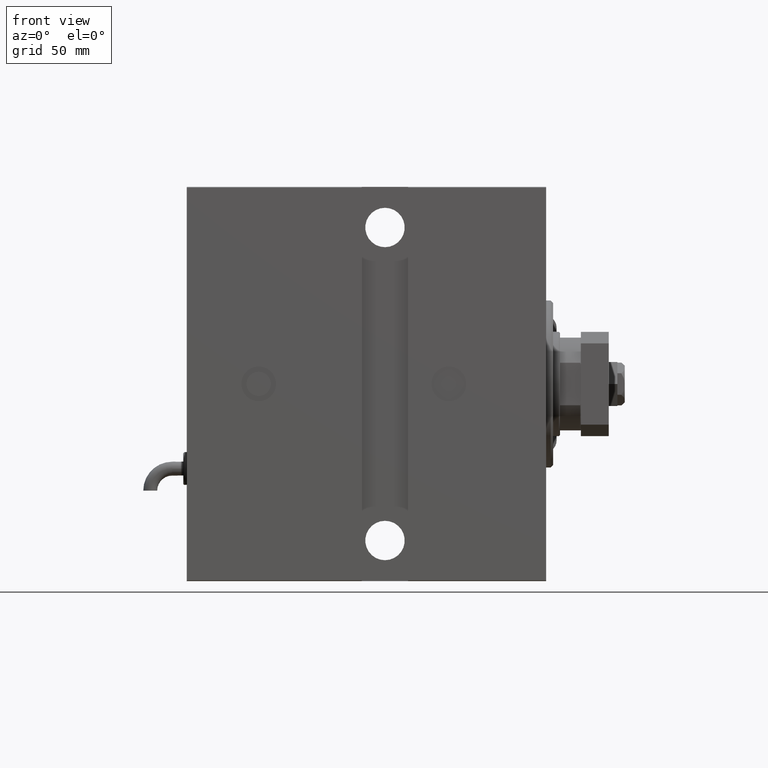
[diagram: clean part render]
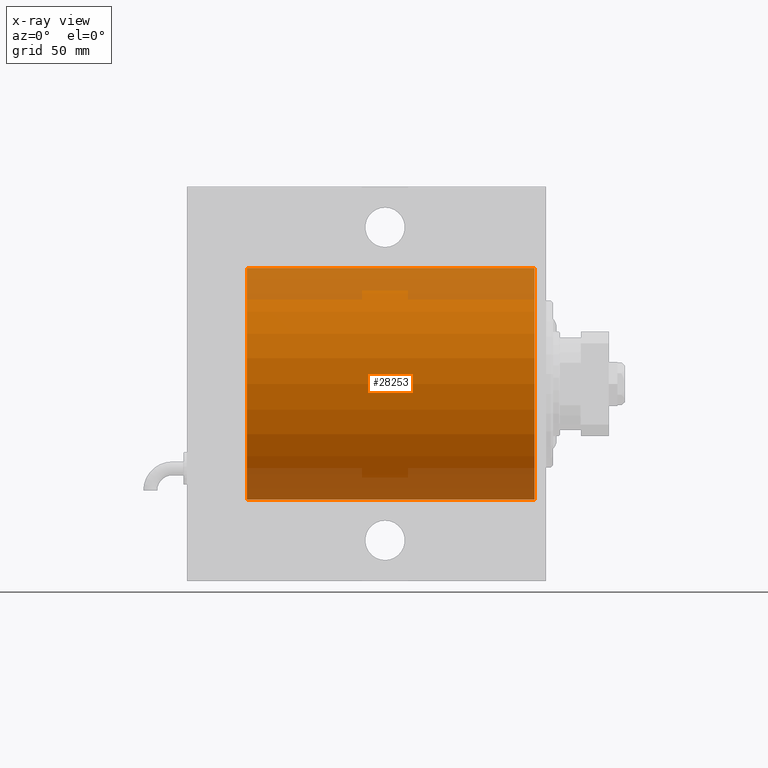
[diagram: x-ray — body ghosted, one internal face saturated and labeled with its STEP entity id]
A machine part, front view, then the same camera in x-ray: the body is ghosted and one INTERNAL B-rep face — a face not visible from any outside direction — is saturated and labeled: STEP entity #28253.
In plain terms, the highlighted cylindrical surface (partial cylindrical patch) has radius 50 mm, axis along (1, 0, -0).
Its self-contained STEP definition (entity closure, byte-faithful):
#540 = CIRCLE ( 'NONE', #37280, 50.00000000000000000 ) ;
#1371 = DIRECTION ( 'NONE',  ( 0.000000000000000000, 0.000000000000000000, 1.000000000000000000 ) ) ;
#3480 = VERTEX_POINT ( 'NONE', #10468 ) ;
#7318 = CARTESIAN_POINT ( 'NONE',  ( 129.0000000000000000, 6.123233995736766085E-15, -50.00000000000000000 ) ) ;
#9185 = CYLINDRICAL_SURFACE ( 'NONE', #25058, 50.00000000000000000 ) ;
#10468 = CARTESIAN_POINT ( 'NONE',  ( 129.0000000000000000, 0.000000000000000000, 50.00000000000000000 ) ) ;
#12425 = CARTESIAN_POINT ( 'NONE',  ( 5.000000000000004441, 6.123233995736766085E-15, -50.00000000000000000 ) ) ;
#13604 = DIRECTION ( 'NONE',  ( -1.000000000000000000, -0.000000000000000000, -0.000000000000000000 ) ) ;
#19378 = ORIENTED_EDGE ( 'NONE', *, *, #37060, .F. ) ;
#22648 = DIRECTION ( 'NONE',  ( -1.000000000000000000, -0.000000000000000000, -0.000000000000000000 ) ) ;
#22853 = CARTESIAN_POINT ( 'NONE',  ( 5.000000000000004441, 0.000000000000000000, 0.000000000000000000 ) ) ;
#22921 = LINE ( 'NONE', #31793, #28250 ) ;
#23143 = DIRECTION ( 'NONE',  ( -1.000000000000000000, 0.000000000000000000, 0.000000000000000000 ) ) ;
#24376 = EDGE_LOOP ( 'NONE', ( #19378, #56725, #24703, #43345 ) ) ;
#24703 = ORIENTED_EDGE ( 'NONE', *, *, #42385, .T. ) ;
#25058 = AXIS2_PLACEMENT_3D ( 'NONE', #49303, #13604, #40161 ) ;
#25819 = CARTESIAN_POINT ( 'NONE',  ( 5.000000000000004441, 0.000000000000000000, 50.00000000000000000 ) ) ;
#28250 = VECTOR ( 'NONE', #22648, 1000.000000000000000 ) ;
#28253 = ADVANCED_FACE ( 'NONE', ( #54020 ), #9185, .F. ) ;
#29212 = EDGE_CURVE ( 'NONE', #41397, #30595, #540, .T. ) ;
#30090 = VECTOR ( 'NONE', #42714, 1000.000000000000000 ) ;
#30595 = VERTEX_POINT ( 'NONE', #12425 ) ;
#31793 = CARTESIAN_POINT ( 'NONE',  ( 129.0000000000000000, 0.000000000000000000, 50.00000000000000000 ) ) ;
#32957 = CARTESIAN_POINT ( 'NONE',  ( 129.0000000000000000, 0.000000000000000000, 0.000000000000000000 ) ) ;
#33818 = EDGE_CURVE ( 'NONE', #3480, #51942, #57241, .T. ) ;
#37060 = EDGE_CURVE ( 'NONE', #51942, #30595, #56582, .T. ) ;
#37280 = AXIS2_PLACEMENT_3D ( 'NONE', #22853, #23143, #40848 ) ;
#40161 = DIRECTION ( 'NONE',  ( 0.000000000000000000, 0.000000000000000000, 1.000000000000000000 ) ) ;
#40311 = AXIS2_PLACEMENT_3D ( 'NONE', #32957, #46801, #1371 ) ;
#40848 = DIRECTION ( 'NONE',  ( 0.000000000000000000, 0.000000000000000000, 1.000000000000000000 ) ) ;
#41397 = VERTEX_POINT ( 'NONE', #25819 ) ;
#42385 = EDGE_CURVE ( 'NONE', #3480, #41397, #22921, .T. ) ;
#42714 = DIRECTION ( 'NONE',  ( -1.000000000000000000, -0.000000000000000000, -0.000000000000000000 ) ) ;
#43345 = ORIENTED_EDGE ( 'NONE', *, *, #29212, .T. ) ;
#46801 = DIRECTION ( 'NONE',  ( -1.000000000000000000, 0.000000000000000000, 0.000000000000000000 ) ) ;
#49303 = CARTESIAN_POINT ( 'NONE',  ( 129.0000000000000000, 0.000000000000000000, 0.000000000000000000 ) ) ;
#51942 = VERTEX_POINT ( 'NONE', #54095 ) ;
#54020 = FACE_OUTER_BOUND ( 'NONE', #24376, .T. ) ;
#54095 = CARTESIAN_POINT ( 'NONE',  ( 129.0000000000000000, 6.123233995736766085E-15, -50.00000000000000000 ) ) ;
#56582 = LINE ( 'NONE', #7318, #30090 ) ;
#56725 = ORIENTED_EDGE ( 'NONE', *, *, #33818, .F. ) ;
#57241 = CIRCLE ( 'NONE', #40311, 50.00000000000000000 ) ;